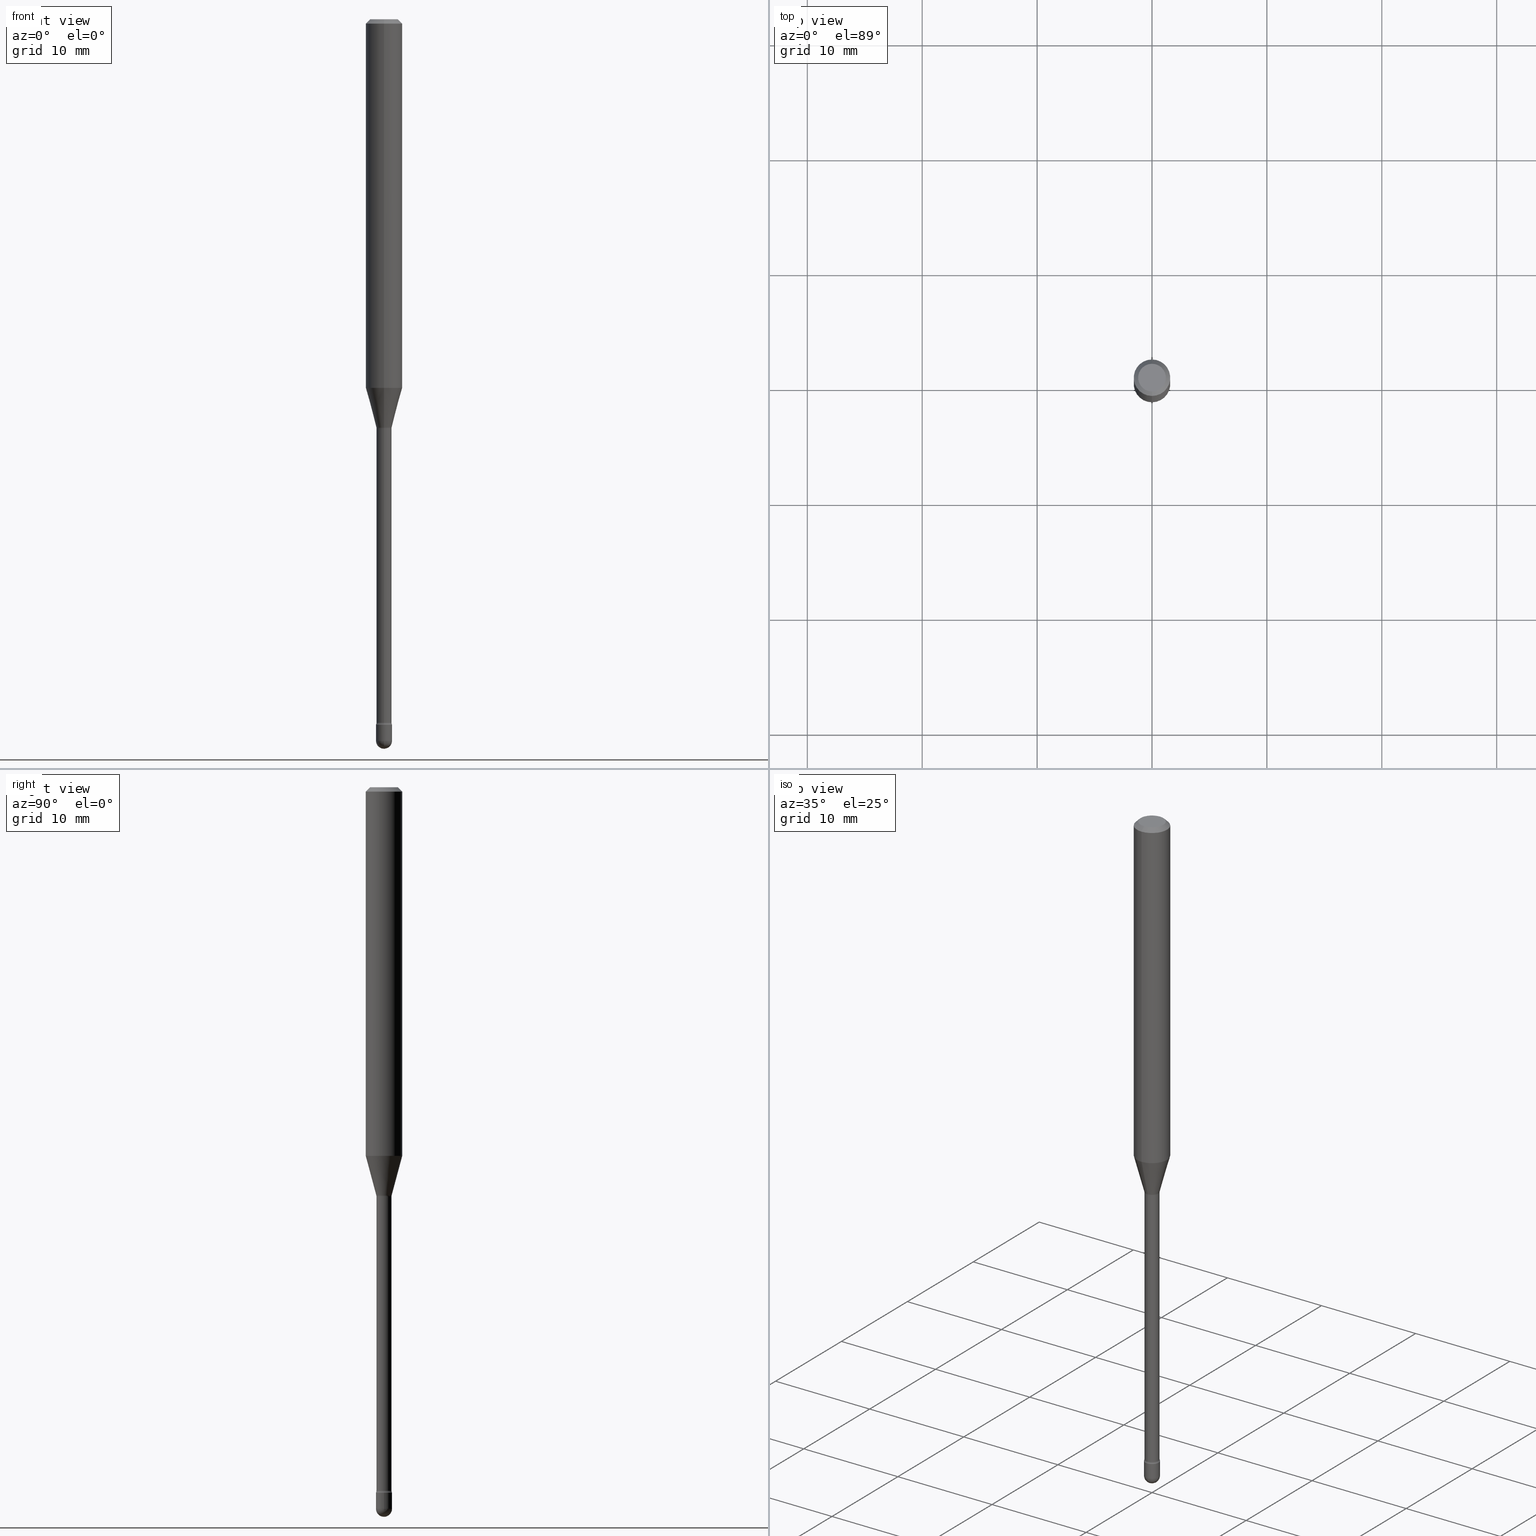
[diagram: canonical four-view strip — front | top / right | iso, engineering-drawing reading convention]
A machine part, canonical four-view strip (front | top / right | iso — engineering-drawing reading convention). The complete STEP part file that produces these views, byte-faithful:
ISO-10303-21;
HEADER;
FILE_DESCRIPTION (( 'STEP AP203' ),
    '1' );
FILE_NAME ('03951.STEP',
    '2024-04-09T21:23:54',
    ( '' ),
    ( '' ),
    'SwSTEP 2.0',
    'SolidWorks 2023',
    '' );
FILE_SCHEMA (( 'CONFIG_CONTROL_DESIGN' ));
ENDSEC;

DATA;
#1 = DIRECTION ( 'NONE',  ( -6.982962677686265133E-15, -1.000000000000000000, 0.000000000000000000 ) ) ;
#2 = CARTESIAN_POINT ( 'NONE',  ( 3.428417186271223769E-29, -4.895066794347240348E-15, -1.401974787463810879 ) ) ;
#3 = DIRECTION ( 'NONE',  ( -4.851104656540964275E-15, -0.7071067811865500152, -0.7071067811865450192 ) ) ;
#4 = ADVANCED_FACE ( 'NONE', ( #353 ), #357, .F. ) ;
#5 = CC_DESIGN_DATE_AND_TIME_ASSIGNMENT ( #354, #192, ( #152 ) ) ;
#6 = DIRECTION ( 'NONE',  ( -2.445420001078101296E-29, 3.491551230534234238E-15, 1.000000000000000000 ) ) ;
#7 = APPROVAL_PERSON_ORGANIZATION ( #97, #29, #440 ) ;
#8 = CARTESIAN_POINT ( 'NONE',  ( 4.440892098500932831E-16, 0.06249999999999556605, -1.263220337902600798 ) ) ;
#9 = ORIENTED_EDGE ( 'NONE', *, *, #338, .T. ) ;
#10 = CYLINDRICAL_SURFACE ( 'NONE', #275, 0.02585000000000002920 ) ;
#11 = ORIENTED_EDGE ( 'NONE', *, *, #436, .F. ) ;
#12 = EDGE_CURVE ( 'NONE', #287, #410, #245, .T. ) ;
#13 = CARTESIAN_POINT ( 'NONE',  ( 0.02750000000000000014, -8.630941869620256010E-15, -2.417000000000000259 ) ) ;
#14 = ORIENTED_EDGE ( 'NONE', *, *, #206, .T. ) ;
#15 = DIRECTION ( 'NONE',  ( -2.445420001078101296E-29, 3.491551230534233844E-15, 1.000000000000000000 ) ) ;
#16 = DIRECTION ( 'NONE',  ( 1.839019923739596371E-15, 0.2588190451025244032, 0.9659258262890673130 ) ) ;
#17 = VERTEX_POINT ( 'NONE', #303 ) ;
#18 = DIRECTION ( 'NONE',  ( -2.445420001078101296E-29, 3.491551230534234238E-15, 1.000000000000000000 ) ) ;
#19 = AXIS2_PLACEMENT_3D ( 'NONE', #126, #476, #255 ) ;
#20 = CIRCLE ( 'NONE', #39, 0.01500000000000002720 ) ;
#21 = ORIENTED_EDGE ( 'NONE', *, *, #436, .T. ) ;
#22 = EDGE_CURVE ( 'NONE', #201, #25, #115, .T. ) ;
#23 = APPLICATION_PROTOCOL_DEFINITION ( 'international standard', 'config_control_design', 1994, #339 ) ;
#24 = DIRECTION ( 'NONE',  ( 1.000000000000000000, -6.982962677686265922E-15, 4.876176775795935793E-29 ) ) ;
#25 = VERTEX_POINT ( 'NONE', #56 ) ;
#26 = ORIENTED_EDGE ( 'NONE', *, *, #536, .T. ) ;
#27 = CARTESIAN_POINT ( 'NONE',  ( 1.953992523340868892E-16, 0.02749999999999159367, -2.417000000000000259 ) ) ;
#28 = DIRECTION ( 'NONE',  ( -6.982962677686265922E-15, -1.000000000000000000, 4.370956789862821150E-15 ) ) ;
#29 = APPROVAL ( #62, 'UNSPECIFIED' ) ;
#30 = VERTEX_POINT ( 'NONE', #345 ) ;
#31 = APPLICATION_PROTOCOL_DEFINITION ( 'international standard', 'config_control_design', 1994, #168 ) ;
#32 = AXIS2_PLACEMENT_3D ( 'NONE', #427, #471, #82 ) ;
#33 = CIRCLE ( 'NONE', #253, 0.04749999999999999362 ) ;
#34 = DIRECTION ( 'NONE',  ( -2.445420001078101296E-29, 3.491551230534234238E-15, 1.000000000000000000 ) ) ;
#35 = EDGE_CURVE ( 'NONE', #452, #30, #79, .T. ) ;
#36 = CC_DESIGN_PERSON_AND_ORGANIZATION_ASSIGNMENT ( #421, #77, ( #92 ) ) ;
#37 = PERSON_AND_ORGANIZATION_ROLE ( 'design_supplier' ) ;
#38 = DIRECTION ( 'NONE',  ( -2.445468806185136597E-29, 3.491481338843145583E-15, 1.000000000000000000 ) ) ;
#39 = AXIS2_PLACEMENT_3D ( 'NONE', #107, #524, #316 ) ;
#40 = EDGE_CURVE ( 'NONE', #155, #201, #302, .T. ) ;
#41 = CARTESIAN_POINT ( 'NONE',  ( 5.910698104549475684E-29, -8.438910395983882728E-15, -2.417000000000000259 ) ) ;
#42 = DIRECTION ( 'NONE',  ( -6.982962677686265922E-15, -1.000000000000000000, 3.491551230534234238E-15 ) ) ;
#43 = CARTESIAN_POINT ( 'NONE',  ( 5.893972545952798109E-29, -8.415030731040159309E-15, -2.410160592130893509 ) ) ;
#44 = DATE_AND_TIME ( #502, #276 ) ;
#45 = CALENDAR_DATE ( 2024, 9, 4 ) ;
#46 = CIRCLE ( 'NONE', #483, 0.02750000000000000014 ) ;
#47 = CARTESIAN_POINT ( 'NONE',  ( 6.046421623292748621E-29, -8.632687610289675147E-15, -2.472499999999999254 ) ) ;
#48 = CARTESIAN_POINT ( 'NONE',  ( 6.114847869110463221E-29, -8.727019457759036735E-15, -2.500000000000000000 ) ) ;
#49 = ADVANCED_FACE ( 'NONE', ( #565 ), #412, .T. ) ;
#50 = MANIFOLD_SOLID_BREP ( 'Body-Move/Copy2[1]', #329 ) ;
#51 = DIMENSIONAL_EXPONENTS ( 1.000000000000000000, 0.000000000000000000, 0.000000000000000000, 0.000000000000000000, 0.000000000000000000, 0.000000000000000000, 0.000000000000000000 ) ;
#52 = ORIENTED_EDGE ( 'NONE', *, *, #415, .F. ) ;
#53 = CARTESIAN_POINT ( 'NONE',  ( -1.953992523339673522E-16, -0.02750000000000868070, -2.472499999999999254 ) ) ;
#54 = CARTESIAN_POINT ( 'NONE',  ( 0.000000000000000000, 0.000000000000000000, 0.000000000000000000 ) ) ;
#55 = LINE ( 'NONE', #274, #414 ) ;
#56 = CARTESIAN_POINT ( 'NONE',  ( 4.440892098500935790E-16, 0.06249999999999993755, -0.01500000000000030129 ) ) ;
#57 = AXIS2_PLACEMENT_3D ( 'NONE', #233, #18, #544 ) ;
#58 = FACE_OUTER_BOUND ( 'NONE', #456, .T. ) ;
#59 = APPROVAL_PERSON_ORGANIZATION ( #194, #392, #162 ) ;
#60 = DIRECTION ( 'NONE',  ( 4.937700262164548042E-15, 0.7071067811865451302, -0.7071067811865499042 ) ) ;
#61 = DIRECTION ( 'NONE',  ( 1.000000000000000000, -6.982962677686266711E-15, 4.876176775795935793E-29 ) ) ;
#62 = APPROVAL_STATUS ( 'not_yet_approved' ) ;
#63 = EDGE_LOOP ( 'NONE', ( #290, #324, #496, #14 ) ) ;
#64 = DIRECTION ( 'NONE',  ( -6.982962677686265133E-15, -1.000000000000000000, 0.000000000000000000 ) ) ;
#65 = CARTESIAN_POINT ( 'NONE',  ( -1.840786654676023495E-16, -0.02636111260566886480, -1.398092501787272957 ) ) ;
#66 = EDGE_LOOP ( 'NONE', ( #11, #318, #417, #460 ) ) ;
#67 = CIRCLE ( 'NONE', #139, 0.02750000000000000014 ) ;
#68 = EDGE_LOOP ( 'NONE', ( #293, #156, #161, #488 ) ) ;
#69 = TOROIDAL_SURFACE ( 'NONE', #310, 0.04085000000000012232, 0.01500000000000006710 ) ;
#70 = CC_DESIGN_PERSON_AND_ORGANIZATION_ASSIGNMENT ( #326, #335, ( #268 ) ) ;
#71 = FACE_OUTER_BOUND ( 'NONE', #236, .T. ) ;
#72 = ORIENTED_EDGE ( 'NONE', *, *, #113, .F. ) ;
#73 = DIRECTION ( 'NONE',  ( -2.445420001078101296E-29, 3.491551230534233844E-15, 1.000000000000000000 ) ) ;
#74 = ORIENTED_EDGE ( 'NONE', *, *, #323, .F. ) ;
#75 = CARTESIAN_POINT ( 'NONE',  ( 3.668130001617172351E-31, -5.237326845801380200E-17, -0.01500000000000008271 ) ) ;
#76 = EDGE_LOOP ( 'NONE', ( #550, #291, #333, #9, #376 ) ) ;
#77 = PERSON_AND_ORGANIZATION_ROLE ( 'design_owner' ) ;
#78 = EDGE_CURVE ( 'NONE', #117, #193, #340, .T. ) ;
#79 = CIRCLE ( 'NONE', #431, 0.02584999999999999451 ) ;
#80 = VECTOR ( 'NONE', #73, 39.37007874015748143 ) ;
#81 = APPROVAL_STATUS ( 'not_yet_approved' ) ;
#82 = DIRECTION ( 'NONE',  ( -6.982962677686265922E-15, -1.000000000000000000, 3.491551230534234238E-15 ) ) ;
#83 = FACE_OUTER_BOUND ( 'NONE', #66, .T. ) ;
#84 = EDGE_CURVE ( 'NONE', #117, #30, #172, .T. ) ;
#85 = CIRCLE ( 'NONE', #507, 0.01500000000000006189 ) ;
#86 = EDGE_CURVE ( 'NONE', #552, #17, #46, .T. ) ;
#87 = DIRECTION ( 'NONE',  ( -2.445468806185136597E-29, 3.491481338843145583E-15, 1.000000000000000000 ) ) ;
#88 = FACE_OUTER_BOUND ( 'NONE', #68, .T. ) ;
#89 = LINE ( 'NONE', #262, #185 ) ;
#90 = ADVANCED_FACE ( 'NONE', ( #356 ), #314, .T. ) ;
#91 = DIRECTION ( 'NONE',  ( -2.445420001078101296E-29, 3.491551230534234238E-15, 1.000000000000000000 ) ) ;
#92 = PRODUCT ( '03951', '03951', '', ( #370 ) ) ;
#93 = AXIS2_PLACEMENT_3D ( 'NONE', #393, #6, #525 ) ;
#94 = CIRCLE ( 'NONE', #247, 0.02750000000000009034 ) ;
#95 = DIRECTION ( 'NONE',  ( -2.445468806185136597E-29, 3.491481338843145583E-15, 1.000000000000000000 ) ) ;
#96 = FACE_OUTER_BOUND ( 'NONE', #327, .T. ) ;
#97 = PERSON_AND_ORGANIZATION ( #355, #520 ) ;
#98 = ORIENTED_EDGE ( 'NONE', *, *, #261, .T. ) ;
#99 = CARTESIAN_POINT ( 'NONE',  ( -1.840786654676023495E-16, -0.02636111260566886480, -1.398092501787272957 ) ) ;
#100 = CARTESIAN_POINT ( 'NONE',  ( 5.893854917807127540E-29, -8.415199181239739189E-15, -2.410160592130893509 ) ) ;
#101 = SECURITY_CLASSIFICATION_LEVEL ( 'unclassified' ) ;
#102 = DIRECTION ( 'NONE',  ( 6.982962677686265922E-15, 1.000000000000000000, 0.000000000000000000 ) ) ;
#103 = VERTEX_POINT ( 'NONE', #108 ) ;
#104 = CIRCLE ( 'NONE', #423, 0.02750000000000000014 ) ;
#105 = EDGE_CURVE ( 'NONE', #193, #117, #446, .T. ) ;
#106 = AXIS2_PLACEMENT_3D ( 'NONE', #41, #359, #144 ) ;
#107 = CARTESIAN_POINT ( 'NONE',  ( 2.902567075580351245E-16, 0.04084999999999510550, -1.401974787463811101 ) ) ;
#108 = CARTESIAN_POINT ( 'NONE',  ( -3.773273898774340269E-16, -0.04749999999999999362, 8.310497123415743140E-17 ) ) ;
#109 = PRODUCT_DEFINITION_SHAPE ( 'NONE', 'NONE',  #268 ) ;
#110 = CARTESIAN_POINT ( 'NONE',  ( 1.895372747640661167E-16, 0.02584999999999164702, -2.410160592130893509 ) ) ;
#111 = ORIENTED_EDGE ( 'NONE', *, *, #78, .T. ) ;
#112 = ORIENTED_EDGE ( 'NONE', *, *, #84, .F. ) ;
#113 = EDGE_CURVE ( 'NONE', #117, #155, #455, .T. ) ;
#114 = ORIENTED_EDGE ( 'NONE', *, *, #468, .T. ) ;
#115 = CIRCLE ( 'NONE', #398, 0.06250000000000000000 ) ;
#116 = AXIS2_PLACEMENT_3D ( 'NONE', #75, #251, #336 ) ;
#117 = VERTEX_POINT ( 'NONE', #99 ) ;
#118 = PERSON_AND_ORGANIZATION_ROLE ( 'creator' ) ;
#119 = CARTESIAN_POINT ( 'NONE',  ( 5.910698104549475684E-29, -8.438910395983882728E-15, -2.417000000000000259 ) ) ;
#120 = PLANE ( 'NONE',  #424 ) ;
#121 = AXIS2_PLACEMENT_3D ( 'NONE', #292, #467, #385 ) ;
#122 = AXIS2_PLACEMENT_3D ( 'NONE', #100, #399, #64 ) ;
#123 = CC_DESIGN_SECURITY_CLASSIFICATION ( #152, ( #470 ) ) ;
#124 = CARTESIAN_POINT ( 'NONE',  ( 1.920314736364314350E-16, 0.02749999999999156244, -2.417000000000000259 ) ) ;
#125 = FACE_OUTER_BOUND ( 'NONE', #368, .T. ) ;
#126 = CARTESIAN_POINT ( 'NONE',  ( -1.169113584055446105E-44, 1.669184350826100908E-30, 4.780733988912460139E-16 ) ) ;
#127 = CALENDAR_DATE ( 2024, 9, 4 ) ;
#128 = CARTESIAN_POINT ( 'NONE',  ( 3.418923367227918324E-29, -4.881511595016037961E-15, -1.398092501787272957 ) ) ;
#129 = LOCAL_TIME ( 17, 23, 54.00000000000000000, #166 ) ;
#130 = DIRECTION ( 'NONE',  ( -6.982962677686266711E-15, -1.000000000000000000, 0.000000000000000000 ) ) ;
#131 = CYLINDRICAL_SURFACE ( 'NONE', #19, 0.06250000000000000000 ) ;
#132 = ADVANCED_FACE ( 'NONE', ( #277 ), #469, .F. ) ;
#133 = COORDINATED_UNIVERSAL_TIME_OFFSET ( 5, 0, .BEHIND. ) ;
#134 = DIRECTION ( 'NONE',  ( -6.982962677686265922E-15, -1.000000000000000000, 0.000000000000000000 ) ) ;
#135 = DESIGN_CONTEXT ( 'detailed design', #168, 'design' ) ;
#136 = DIRECTION ( 'NONE',  ( 6.982962677686265922E-15, 1.000000000000000000, -3.483106191921935554E-15 ) ) ;
#137 = CARTESIAN_POINT ( 'NONE',  ( 6.046421623292748621E-29, -8.632687610289675147E-15, -2.472499999999999254 ) ) ;
#138 = LINE ( 'NONE', #180, #541 ) ;
#139 = AXIS2_PLACEMENT_3D ( 'NONE', #177, #264, #438 ) ;
#140 = CIRCLE ( 'NONE', #288, 0.04749999999999999362 ) ;
#141 = VERTEX_POINT ( 'NONE', #13 ) ;
#142 = CYLINDRICAL_SURFACE ( 'NONE', #215, 0.02750000000000000014 ) ;
#143 = CARTESIAN_POINT ( 'NONE',  ( -1.169113584055446105E-44, 1.669184350826100908E-30, 4.780733988912460139E-16 ) ) ;
#144 = DIRECTION ( 'NONE',  ( 1.000000000000000000, -6.982962677686279332E-15, 0.000000000000000000 ) ) ;
#145 = EDGE_LOOP ( 'NONE', ( #532, #207, #394, #402 ) ) ;
#146 = PRODUCT_RELATED_PRODUCT_CATEGORY ( 'detail', '', ( #92 ) ) ;
#147 = CARTESIAN_POINT ( 'NONE',  ( 6.046421623292749742E-29, -8.632687610289676724E-15, -2.472500000000000142 ) ) ;
#148 = CARTESIAN_POINT ( 'NONE',  ( 3.668130001617172351E-31, -5.237326845801380200E-17, -0.01500000000000008271 ) ) ;
#149 = ORIENTED_EDGE ( 'NONE', *, *, #187, .F. ) ;
#150 = DIRECTION ( 'NONE',  ( 1.000000000000000000, 0.000000000000000000, 0.000000000000000000 ) ) ;
#151 = DIRECTION ( 'NONE',  ( -2.445420001078101296E-29, 3.491551230534234238E-15, 1.000000000000000000 ) ) ;
#152 = SECURITY_CLASSIFICATION ( '', '', #101 ) ;
#153 = ORIENTED_EDGE ( 'NONE', *, *, #86, .F. ) ;
#154 = LOCAL_TIME ( 17, 23, 54.00000000000000000, #530 ) ;
#155 = VERTEX_POINT ( 'NONE', #242 ) ;
#156 = ORIENTED_EDGE ( 'NONE', *, *, #457, .T. ) ;
#157 = DIRECTION ( 'NONE',  ( -2.445468806185136597E-29, 3.491481338843145583E-15, 1.000000000000000000 ) ) ;
#158 = ADVANCED_FACE ( 'NONE', ( #58 ), #408, .T. ) ;
#159 = ORIENTED_EDGE ( 'NONE', *, *, #22, .F. ) ;
#160 = ADVANCED_BREP_SHAPE_REPRESENTATION ( '03951', ( #50, #420, #231 ), #367 ) ;
#161 = ORIENTED_EDGE ( 'NONE', *, *, #22, .T. ) ;
#162 = APPROVAL_ROLE ( '' ) ;
#163 = ORIENTED_EDGE ( 'NONE', *, *, #548, .T. ) ;
#164 = CALENDAR_DATE ( 2024, 9, 4 ) ;
#165 = VERTEX_POINT ( 'NONE', #53 ) ;
#166 = COORDINATED_UNIVERSAL_TIME_OFFSET ( 5, 0, .BEHIND. ) ;
#167 = ADVANCED_FACE ( 'NONE', ( #312 ), #10, .T. ) ;
#168 = APPLICATION_CONTEXT ( 'configuration controlled 3d designs of mechanical parts and assemblies' ) ;
#169 = DATE_AND_TIME ( #164, #566 ) ;
#170 = DIRECTION ( 'NONE',  ( -2.445420001078101296E-29, 3.491551230534233844E-15, 1.000000000000000000 ) ) ;
#171 = DIRECTION ( 'NONE',  ( -6.982962677686267499E-15, -1.000000000000000000, 0.000000000000000000 ) ) ;
#172 = CIRCLE ( 'NONE', #256, 0.01500000000000002720 ) ;
#173 = VECTOR ( 'NONE', #16, 39.37007874015748143 ) ;
#174 = EDGE_CURVE ( 'NONE', #453, #165, #377, .T. ) ;
#175 = CARTESIAN_POINT ( 'NONE',  ( 5.910580142605772415E-29, -8.439079324201244394E-15, -2.417000000000000259 ) ) ;
#176 = EDGE_CURVE ( 'NONE', #508, #155, #564, .T. ) ;
#177 = CARTESIAN_POINT ( 'NONE',  ( 5.910580142605772415E-29, -8.439079324201244394E-15, -2.417000000000000259 ) ) ;
#178 = CARTESIAN_POINT ( 'NONE',  ( 3.668130001617172351E-31, -5.237326845801380200E-17, -0.01500000000000008271 ) ) ;
#179 = SHAPE_DEFINITION_REPRESENTATION ( #109, #160 ) ;
#180 = CARTESIAN_POINT ( 'NONE',  ( 0.02750000000000000014, -1.920314736363723444E-16, 1.340948613343882413E-30 ) ) ;
#181 = ADVANCED_FACE ( 'NONE', ( #512 ), #209, .F. ) ;
#182 = DIRECTION ( 'NONE',  ( 1.000000000000000000, -6.982962677686279332E-15, 0.000000000000000000 ) ) ;
#183 = PERSON_AND_ORGANIZATION_ROLE ( 'classification_officer' ) ;
#184 = CIRCLE ( 'NONE', #121, 0.02584999999999999451 ) ;
#185 = VECTOR ( 'NONE', #220, 39.37007874015748143 ) ;
#186 = CARTESIAN_POINT ( 'NONE',  ( 0.02750000000000000014, -8.727830476773152219E-15, -2.472499999999999254 ) ) ;
#187 = EDGE_CURVE ( 'NONE', #141, #401, #104, .T. ) ;
#188 = EDGE_LOOP ( 'NONE', ( #74, #501, #238, #543 ) ) ;
#189 = ORIENTED_EDGE ( 'NONE', *, *, #105, .F. ) ;
#190 = ORIENTED_EDGE ( 'NONE', *, *, #517, .T. ) ;
#191 = DIRECTION ( 'NONE',  ( -1.000000000000000000, 7.105427357601001070E-15, -4.926315508542082329E-29 ) ) ;
#192 = DATE_TIME_ROLE ( 'classification_date' ) ;
#193 = VERTEX_POINT ( 'NONE', #558 ) ;
#194 = PERSON_AND_ORGANIZATION ( #355, #520 ) ;
#195 = CARTESIAN_POINT ( 'NONE',  ( 2.023197963935880220E-45, -2.889373235658218209E-31, -8.274371221621867765E-17 ) ) ;
#196 = CARTESIAN_POINT ( 'NONE',  ( -1.169113584055446105E-44, 1.669184350826100908E-30, 4.780733988912460139E-16 ) ) ;
#197 = CARTESIAN_POINT ( 'NONE',  ( 4.364351673553919652E-16, 0.06249999999999995143, -0.01500000000000030129 ) ) ;
#198 = ORIENTED_EDGE ( 'NONE', *, *, #218, .F. ) ;
#199 = EDGE_CURVE ( 'NONE', #30, #452, #184, .T. ) ;
#200 = DIRECTION ( 'NONE',  ( -2.445420001078101296E-29, 3.491551230534234238E-15, 1.000000000000000000 ) ) ;
#201 = VERTEX_POINT ( 'NONE', #562 ) ;
#202 =( CONVERSION_BASED_UNIT ( 'INCH', #542 ) LENGTH_UNIT ( ) NAMED_UNIT ( #51 ) );
#203 = CARTESIAN_POINT ( 'NONE',  ( 6.046421623292749742E-29, -8.632687610289676724E-15, -2.472500000000000142 ) ) ;
#204 = EDGE_LOOP ( 'NONE', ( #189, #379, #388, #112 ) ) ;
#205 = DATE_AND_TIME ( #208, #129 ) ;
#206 = EDGE_CURVE ( 'NONE', #500, #410, #514, .T. ) ;
#207 = ORIENTED_EDGE ( 'NONE', *, *, #239, .T. ) ;
#208 = CALENDAR_DATE ( 2024, 9, 4 ) ;
#209 = TOROIDAL_SURFACE ( 'NONE', #32, 0.04085000000000012232, 0.01500000000000006710 ) ;
#210 = AXIS2_PLACEMENT_3D ( 'NONE', #375, #278, #547 ) ;
#211 = ADVANCED_FACE ( 'NONE', ( #387 ), #286, .T. ) ;
#212 = LINE ( 'NONE', #380, #300 ) ;
#213 = ORIENTED_EDGE ( 'NONE', *, *, #206, .F. ) ;
#214 = CIRCLE ( 'NONE', #311, 0.02750000000000000014 ) ;
#215 = AXIS2_PLACEMENT_3D ( 'NONE', #280, #407, #61 ) ;
#216 = DIRECTION ( 'NONE',  ( 1.000000000000000000, -6.982962677686279332E-15, 0.000000000000000000 ) ) ;
#217 = CARTESIAN_POINT ( 'NONE',  ( -2.852540253834496229E-16, -0.04085000000000488934, -1.401974787463810657 ) ) ;
#218 = EDGE_CURVE ( 'NONE', #155, #508, #494, .T. ) ;
#219 = CARTESIAN_POINT ( 'NONE',  ( 2.902567075580607131E-16, 0.04084999999999170545, -2.410160592130893509 ) ) ;
#220 = DIRECTION ( 'NONE',  ( -2.445468806185136877E-29, 3.491481338843145188E-15, 1.000000000000000000 ) ) ;
#221 = AXIS2_PLACEMENT_3D ( 'NONE', #301, #342, #473 ) ;
#222 = CC_DESIGN_PERSON_AND_ORGANIZATION_ASSIGNMENT ( #337, #37, ( #470 ) ) ;
#223 = LOCAL_TIME ( 17, 23, 54.00000000000000000, #133 ) ;
#224 = DIRECTION ( 'NONE',  ( -6.982962677686265922E-15, -1.000000000000000000, 3.483106191921935554E-15 ) ) ;
#225 = DIRECTION ( 'NONE',  ( -6.982962677686263555E-15, -1.000000000000000000, 0.000000000000000000 ) ) ;
#226 = ADVANCED_FACE ( 'NONE', ( #83 ), #131, .T. ) ;
#227 = DIRECTION ( 'NONE',  ( 1.000000000000000000, -6.982962677686279332E-15, 0.000000000000000000 ) ) ;
#228 = ORIENTED_EDGE ( 'NONE', *, *, #372, .T. ) ;
#229 = CC_DESIGN_PERSON_AND_ORGANIZATION_ASSIGNMENT ( #254, #118, ( #470 ) ) ;
#230 = DIRECTION ( 'NONE',  ( -1.000000000000000000, 6.982962677686265922E-15, -4.883557194083112901E-29 ) ) ;
#231 = AXIS2_PLACEMENT_3D ( 'NONE', #459, #241, #150 ) ;
#232 = DIRECTION ( 'NONE',  ( -2.445420001078101296E-29, 3.491551230534234238E-15, 1.000000000000000000 ) ) ;
#233 = CARTESIAN_POINT ( 'NONE',  ( -1.169113584055446105E-44, 1.669184350826100908E-30, 4.780733988912460139E-16 ) ) ;
#234 = CARTESIAN_POINT ( 'NONE',  ( -1.805095852181314535E-16, -0.02585000000000847384, -2.410160592130893509 ) ) ;
#235 = ORIENTED_EDGE ( 'NONE', *, *, #40, .F. ) ;
#236 = EDGE_LOOP ( 'NONE', ( #403, #419 ) ) ;
#237 = DIRECTION ( 'NONE',  ( -6.982962677686265922E-15, -1.000000000000000000, 0.000000000000000000 ) ) ;
#238 = ORIENTED_EDGE ( 'NONE', *, *, #113, .T. ) ;
#239 = EDGE_CURVE ( 'NONE', #287, #519, #265, .T. ) ;
#240 = CARTESIAN_POINT ( 'NONE',  ( 6.046421623292749742E-29, -8.632687610289676724E-15, -2.472500000000000142 ) ) ;
#241 = DIRECTION ( 'NONE',  ( 0.000000000000000000, 0.000000000000000000, 1.000000000000000000 ) ) ;
#242 = CARTESIAN_POINT ( 'NONE',  ( -4.364351673553609038E-16, -0.06250000000000442701, -1.263220337902600354 ) ) ;
#243 = ORIENTED_EDGE ( 'NONE', *, *, #372, .F. ) ;
#244 = DIRECTION ( 'NONE',  ( -2.445420001078101296E-29, 3.491551230534234238E-15, 1.000000000000000000 ) ) ;
#245 = CIRCLE ( 'NONE', #475, 0.01500000000000006189 ) ;
#246 = CLOSED_SHELL ( 'NONE', ( #132, #158, #529, #429, #90, #211, #556, #226, #49, #361, #444, #181, #167, #4 ) ) ;
#247 = AXIS2_PLACEMENT_3D ( 'NONE', #486, #191, #397 ) ;
#248 = ORIENTED_EDGE ( 'NONE', *, *, #485, .T. ) ;
#249 = DIRECTION ( 'NONE',  ( 6.982962677686265922E-15, 1.000000000000000000, 0.000000000000000000 ) ) ;
#250 = ORIENTED_EDGE ( 'NONE', *, *, #86, .T. ) ;
#251 = DIRECTION ( 'NONE',  ( 2.445420001078101296E-29, -3.491551230534234238E-15, -1.000000000000000000 ) ) ;
#252 = EDGE_CURVE ( 'NONE', #410, #500, #67, .T. ) ;
#253 = AXIS2_PLACEMENT_3D ( 'NONE', #195, #451, #363 ) ;
#254 = PERSON_AND_ORGANIZATION ( #355, #520 ) ;
#255 = DIRECTION ( 'NONE',  ( -6.982962677686265922E-15, -1.000000000000000000, 3.491551230534235027E-15 ) ) ;
#256 = AXIS2_PLACEMENT_3D ( 'NONE', #217, #306, #225 ) ;
#257 = DIRECTION ( 'NONE',  ( 1.000000000000000000, -6.982962677686266711E-15, 4.876176775795935793E-29 ) ) ;
#258 = DIRECTION ( 'NONE',  ( -2.445420001078101296E-29, 3.491551230534234238E-15, 1.000000000000000000 ) ) ;
#259 = LINE ( 'NONE', #434, #266 ) ;
#260 = CARTESIAN_POINT ( 'NONE',  ( -4.364351673553916201E-16, -0.06250000000000000000, 6.962953507996357031E-16 ) ) ;
#261 = EDGE_CURVE ( 'NONE', #17, #453, #214, .T. ) ;
#262 = CARTESIAN_POINT ( 'NONE',  ( -0.02750000000000000014, 1.953992523340275521E-16, -1.352707149820099181E-30 ) ) ;
#263 = DIRECTION ( 'NONE',  ( -2.445420001078101296E-29, 3.491551230534234238E-15, 1.000000000000000000 ) ) ;
#264 = DIRECTION ( 'NONE',  ( -2.445420001078101296E-29, 3.491551230534234238E-15, 1.000000000000000000 ) ) ;
#265 = CIRCLE ( 'NONE', #307, 0.02585000000000006043 ) ;
#266 = VECTOR ( 'NONE', #3, 39.37007874015748143 ) ;
#267 = CYLINDRICAL_SURFACE ( 'NONE', #358, 0.02750000000000000014 ) ;
#268 = PRODUCT_DEFINITION ( 'UNKNOWN', '', #470, #135 ) ;
#269 = ORIENTED_EDGE ( 'NONE', *, *, #381, .T. ) ;
#270 = DIRECTION ( 'NONE',  ( -6.982962677686265922E-15, -1.000000000000000000, 3.491551230534236210E-15 ) ) ;
#271 = CARTESIAN_POINT ( 'NONE',  ( 3.418923367227918324E-29, -4.881511595016037961E-15, -1.398092501787272957 ) ) ;
#272 = FACE_OUTER_BOUND ( 'NONE', #505, .T. ) ;
#273 = ORIENTED_EDGE ( 'NONE', *, *, #84, .T. ) ;
#274 = CARTESIAN_POINT ( 'NONE',  ( -1.805095852181901743E-16, -0.02585000000000002920, 5.683299982005562177E-16 ) ) ;
#275 = AXIS2_PLACEMENT_3D ( 'NONE', #143, #200, #270 ) ;
#276 = LOCAL_TIME ( 17, 23, 54.00000000000000000, #509 ) ;
#277 = FACE_OUTER_BOUND ( 'NONE', #204, .T. ) ;
#278 = DIRECTION ( 'NONE',  ( 2.445420001078101296E-29, -3.491551230534233844E-15, -1.000000000000000000 ) ) ;
#279 = EDGE_CURVE ( 'NONE', #165, #552, #347, .T. ) ;
#280 = CARTESIAN_POINT ( 'NONE',  ( 0.000000000000000000, 0.000000000000000000, 0.000000000000000000 ) ) ;
#281 = APPROVAL_DATE_TIME ( #205, #392 ) ;
#282 = EDGE_LOOP ( 'NONE', ( #111, #373, #198, #72 ) ) ;
#283 = ORIENTED_EDGE ( 'NONE', *, *, #477, .T. ) ;
#284 = ORIENTED_EDGE ( 'NONE', *, *, #261, .F. ) ;
#285 = ADVANCED_FACE ( 'NONE', ( #272 ), #531, .T. ) ;
#286 = CONICAL_SURFACE ( 'NONE', #382, 0.02636111260566398329, 0.2617993877991496854 ) ;
#287 = VERTEX_POINT ( 'NONE', #110 ) ;
#288 = AXIS2_PLACEMENT_3D ( 'NONE', #474, #518, #478 ) ;
#289 = DIRECTION ( 'NONE',  ( 1.000000000000000000, -6.982962677686265922E-15, 4.883557194083112340E-29 ) ) ;
#290 = ORIENTED_EDGE ( 'NONE', *, *, #12, .F. ) ;
#291 = ORIENTED_EDGE ( 'NONE', *, *, #174, .T. ) ;
#292 = CARTESIAN_POINT ( 'NONE',  ( 3.428417186271223769E-29, -4.895066794347240348E-15, -1.401974787463810879 ) ) ;
#293 = ORIENTED_EDGE ( 'NONE', *, *, #536, .F. ) ;
#294 = AXIS2_PLACEMENT_3D ( 'NONE', #196, #34, #538 ) ;
#295 = AXIS2_PLACEMENT_3D ( 'NONE', #240, #230, #406 ) ;
#296 = EDGE_CURVE ( 'NONE', #193, #452, #20, .T. ) ;
#297 = DIRECTION ( 'NONE',  ( -2.445468806185136597E-29, 3.491481338843145583E-15, 1.000000000000000000 ) ) ;
#298 = DIRECTION ( 'NONE',  ( -6.982962677686265922E-15, -1.000000000000000000, 3.491551230534233844E-15 ) ) ;
#299 = DIRECTION ( 'NONE',  ( -6.982962677686266711E-15, -1.000000000000000000, 0.000000000000000000 ) ) ;
#300 = VECTOR ( 'NONE', #422, 39.37007874015748143 ) ;
#301 = CARTESIAN_POINT ( 'NONE',  ( 3.089104280075657330E-29, -4.410598525239695969E-15, -1.263220337902600576 ) ) ;
#302 = LINE ( 'NONE', #260, #540 ) ;
#303 = CARTESIAN_POINT ( 'NONE',  ( 1.920314736364331113E-16, 0.02749999999999141673, -2.472499999999999254 ) ) ;
#304 = DIRECTION ( 'NONE',  ( -2.445420001078101296E-29, 3.491551230534234238E-15, 1.000000000000000000 ) ) ;
#305 = CARTESIAN_POINT ( 'NONE',  ( 3.418923367227918324E-29, -4.881511595016037961E-15, -1.398092501787272957 ) ) ;
#306 = DIRECTION ( 'NONE',  ( -1.000000000000000000, 6.982962677686265922E-15, -4.883557194083112340E-29 ) ) ;
#307 = AXIS2_PLACEMENT_3D ( 'NONE', #479, #263, #1 ) ;
#308 = ADVANCED_FACE ( 'NONE', ( #448 ), #142, .T. ) ;
#309 = FACE_OUTER_BOUND ( 'NONE', #325, .T. ) ;
#310 = AXIS2_PLACEMENT_3D ( 'NONE', #43, #258, #42 ) ;
#311 = AXIS2_PLACEMENT_3D ( 'NONE', #47, #87, #563 ) ;
#312 = FACE_OUTER_BOUND ( 'NONE', #145, .T. ) ;
#313 = FACE_OUTER_BOUND ( 'NONE', #188, .T. ) ;
#314 = CYLINDRICAL_SURFACE ( 'NONE', #294, 0.06250000000000000000 ) ;
#315 = SPHERICAL_SURFACE ( 'NONE', #295, 0.02750000000000009034 ) ;
#316 = DIRECTION ( 'NONE',  ( 7.105427357600997914E-15, 1.000000000000000000, 0.000000000000000000 ) ) ;
#317 = ORIENTED_EDGE ( 'NONE', *, *, #381, .F. ) ;
#318 = ORIENTED_EDGE ( 'NONE', *, *, #176, .T. ) ;
#319 = AXIS2_PLACEMENT_3D ( 'NONE', #178, #350, #136 ) ;
#320 = AXIS2_PLACEMENT_3D ( 'NONE', #147, #491, #102 ) ;
#321 = ORIENTED_EDGE ( 'NONE', *, *, #174, .F. ) ;
#322 = ORIENTED_EDGE ( 'NONE', *, *, #457, .F. ) ;
#323 = EDGE_CURVE ( 'NONE', #193, #508, #454, .T. ) ;
#324 = ORIENTED_EDGE ( 'NONE', *, *, #485, .F. ) ;
#325 = EDGE_LOOP ( 'NONE', ( #545, #269, #153, #513 ) ) ;
#326 = PERSON_AND_ORGANIZATION ( #355, #520 ) ;
#327 = EDGE_LOOP ( 'NONE', ( #98, #163, #149, #499, #250 ) ) ;
#328 = APPROVAL ( #81, 'UNSPECIFIED' ) ;
#329 = CLOSED_SHELL ( 'NONE', ( #344, #285, #378, #497, #308 ) ) ;
#330 = ORIENTED_EDGE ( 'NONE', *, *, #239, .F. ) ;
#331 = AXIS2_PLACEMENT_3D ( 'NONE', #271, #442, #237 ) ;
#332 = PLANE ( 'NONE',  #210 ) ;
#333 = ORIENTED_EDGE ( 'NONE', *, *, #279, .T. ) ;
#334 =( NAMED_UNIT ( * ) SI_UNIT ( $, .STERADIAN. ) SOLID_ANGLE_UNIT ( ) );
#335 = PERSON_AND_ORGANIZATION_ROLE ( 'creator' ) ;
#336 = DIRECTION ( 'NONE',  ( 6.982962677686265922E-15, 1.000000000000000000, -3.483106191921935554E-15 ) ) ;
#337 = PERSON_AND_ORGANIZATION ( #355, #520 ) ;
#338 = EDGE_CURVE ( 'NONE', #552, #141, #138, .T. ) ;
#339 = APPLICATION_CONTEXT ( 'configuration controlled 3d designs of mechanical parts and assemblies' ) ;
#340 = CIRCLE ( 'NONE', #506, 0.02636111260566398329 ) ;
#341 = CIRCLE ( 'NONE', #106, 0.02750000000000000014 ) ;
#342 = DIRECTION ( 'NONE',  ( -2.445420001078101296E-29, 3.491551230534234238E-15, 1.000000000000000000 ) ) ;
#343 = DIRECTION ( 'NONE',  ( -2.445420001078101296E-29, 3.491551230534234238E-15, 1.000000000000000000 ) ) ;
#344 = ADVANCED_FACE ( 'NONE', ( #96 ), #267, .T. ) ;
#345 = CARTESIAN_POINT ( 'NONE',  ( -1.805095852181556863E-16, -0.02585000000000488990, -1.401974787463810879 ) ) ;
#346 = AXIS2_PLACEMENT_3D ( 'NONE', #489, #151, #445 ) ;
#347 = CIRCLE ( 'NONE', #437, 0.02750000000000000014 ) ;
#348 = CARTESIAN_POINT ( 'NONE',  ( -0.02750000000000000014, -8.340399750802750818E-15, -2.472499999999999254 ) ) ;
#349 = UNCERTAINTY_MEASURE_WITH_UNIT (LENGTH_MEASURE( 1.000000000000000082E-05 ), #202, 'distance_accuracy_value', 'NONE');
#350 = DIRECTION ( 'NONE',  ( 2.445420001078101296E-29, -3.491551230534234238E-15, -1.000000000000000000 ) ) ;
#351 = EDGE_CURVE ( 'NONE', #401, #141, #341, .T. ) ;
#352 = DIRECTION ( 'NONE',  ( -2.445468806185136877E-29, 3.491481338843145188E-15, 1.000000000000000000 ) ) ;
#353 = FACE_OUTER_BOUND ( 'NONE', #374, .T. ) ;
#354 = DATE_AND_TIME ( #127, #223 ) ;
#355 = PERSON ( 'UNSPECIFIED', 'UNSPECIFIED', 'UNSPECIFIED', ('UNSPECIFIED'), ('UNSPECIFIED'), ('UNSPECIFIED') ) ;
#356 = FACE_OUTER_BOUND ( 'NONE', #464, .T. ) ;
#357 = TOROIDAL_SURFACE ( 'NONE', #93, 0.04084999999999999742, 0.01500000000000002373 ) ;
#358 = AXIS2_PLACEMENT_3D ( 'NONE', #54, #396, #257 ) ;
#359 = DIRECTION ( 'NONE',  ( -2.445468806185136597E-29, 3.491481338843145583E-15, 1.000000000000000000 ) ) ;
#360 = EDGE_LOOP ( 'NONE', ( #322, #243, #190, #283 ) ) ;
#361 = ADVANCED_FACE ( 'NONE', ( #534 ), #332, .F. ) ;
#362 = ORIENTED_EDGE ( 'NONE', *, *, #296, .F. ) ;
#363 = DIRECTION ( 'NONE',  ( -6.982962677686266711E-15, -1.000000000000000000, 3.491551230534234238E-15 ) ) ;
#364 = ORIENTED_EDGE ( 'NONE', *, *, #511, .F. ) ;
#365 = AXIS2_PLACEMENT_3D ( 'NONE', #527, #441, #28 ) ;
#366 = CARTESIAN_POINT ( 'NONE',  ( 1.836752971939860809E-16, 0.02585000000000002920, 3.878167995819360074E-16 ) ) ;
#367 =( GEOMETRIC_REPRESENTATION_CONTEXT ( 3 ) GLOBAL_UNCERTAINTY_ASSIGNED_CONTEXT ( ( #349 ) ) GLOBAL_UNIT_ASSIGNED_CONTEXT ( ( #202, #458, #334 ) ) REPRESENTATION_CONTEXT ( 'NONE', 'WORKASPACE' ) );
#368 = EDGE_LOOP ( 'NONE', ( #330, #539, #492, #52 ) ) ;
#369 = ORIENTED_EDGE ( 'NONE', *, *, #78, .F. ) ;
#370 = MECHANICAL_CONTEXT ( 'NONE', #339, 'mechanical' ) ;
#371 = PLANE ( 'NONE',  #515 ) ;
#372 = EDGE_CURVE ( 'NONE', #549, #103, #33, .T. ) ;
#373 = ORIENTED_EDGE ( 'NONE', *, *, #323, .T. ) ;
#374 = EDGE_LOOP ( 'NONE', ( #362, #369, #273, #416 ) ) ;
#375 = CARTESIAN_POINT ( 'NONE',  ( 3.316907271900976096E-16, 0.04749999999999999362, 3.181615988713758990E-17 ) ) ;
#376 = ORIENTED_EDGE ( 'NONE', *, *, #351, .F. ) ;
#377 = CIRCLE ( 'NONE', #559, 0.02750000000000000014 ) ;
#378 = ADVANCED_FACE ( 'NONE', ( #71 ), #371, .T. ) ;
#379 = ORIENTED_EDGE ( 'NONE', *, *, #296, .T. ) ;
#380 = CARTESIAN_POINT ( 'NONE',  ( 4.440892098500625669E-16, 0.06250000000000000000, 2.598514469828564234E-16 ) ) ;
#381 = EDGE_CURVE ( 'NONE', #466, #17, #553, .T. ) ;
#382 = AXIS2_PLACEMENT_3D ( 'NONE', #128, #304, #481 ) ;
#383 = CIRCLE ( 'NONE', #122, 0.02585000000000006043 ) ;
#384 = DATE_TIME_ROLE ( 'creation_date' ) ;
#385 = DIRECTION ( 'NONE',  ( -6.982962677686266711E-15, -1.000000000000000000, 0.000000000000000000 ) ) ;
#386 = CC_DESIGN_PERSON_AND_ORGANIZATION_ASSIGNMENT ( #487, #183, ( #152 ) ) ;
#387 = FACE_OUTER_BOUND ( 'NONE', #282, .T. ) ;
#388 = ORIENTED_EDGE ( 'NONE', *, *, #35, .T. ) ;
#389 = AXIS2_PLACEMENT_3D ( 'NONE', #493, #404, #450 ) ;
#390 = APPROVAL_PERSON_ORGANIZATION ( #425, #328, #554 ) ;
#391 = CARTESIAN_POINT ( 'NONE',  ( 3.840629472727447874E-16, 0.04749999999999999362, -2.485923956665947867E-16 ) ) ;
#392 = APPROVAL ( #546, 'UNSPECIFIED' ) ;
#393 = CARTESIAN_POINT ( 'NONE',  ( 3.428485609800786496E-29, -4.894968807958480987E-15, -1.401974787463810879 ) ) ;
#394 = ORIENTED_EDGE ( 'NONE', *, *, #511, .T. ) ;
#395 = APPROVAL_DATE_TIME ( #522, #29 ) ;
#396 = DIRECTION ( 'NONE',  ( -2.445468806185136597E-29, 3.491481338843145583E-15, 1.000000000000000000 ) ) ;
#397 = DIRECTION ( 'NONE',  ( -7.105427357601001070E-15, -1.000000000000000000, 0.000000000000000000 ) ) ;
#398 = AXIS2_PLACEMENT_3D ( 'NONE', #480, #232, #224 ) ;
#399 = DIRECTION ( 'NONE',  ( -2.445420001078101296E-29, 3.491551230534234238E-15, 1.000000000000000000 ) ) ;
#400 = CONICAL_SURFACE ( 'NONE', #331, 0.02636111260566398329, 0.2617993877991496854 ) ;
#401 = VERTEX_POINT ( 'NONE', #418 ) ;
#402 = ORIENTED_EDGE ( 'NONE', *, *, #35, .F. ) ;
#403 = ORIENTED_EDGE ( 'NONE', *, *, #187, .T. ) ;
#404 = DIRECTION ( 'NONE',  ( -2.445420001078101296E-29, 3.491551230534234238E-15, 1.000000000000000000 ) ) ;
#405 = LINE ( 'NONE', #366, #80 ) ;
#406 = DIRECTION ( 'NONE',  ( 6.982962677686265922E-15, 1.000000000000000000, 0.000000000000000000 ) ) ;
#407 = DIRECTION ( 'NONE',  ( -2.445468806185136597E-29, 3.491481338843145583E-15, 1.000000000000000000 ) ) ;
#408 = CYLINDRICAL_SURFACE ( 'NONE', #57, 0.02585000000000002920 ) ;
#409 = DIRECTION ( 'NONE',  ( -2.438088387897960049E-29, 3.491481338843145188E-15, 1.000000000000000000 ) ) ;
#410 = VERTEX_POINT ( 'NONE', #27 ) ;
#411 = CARTESIAN_POINT ( 'NONE',  ( 1.873069706851196406E-16, 0.02636111260565909831, -1.398092501787272957 ) ) ;
#412 = CONICAL_SURFACE ( 'NONE', #319, 0.06250000000000000000, 0.7853981633974483900 ) ;
#413 =( LENGTH_UNIT ( ) NAMED_UNIT ( * ) SI_UNIT ( $, .METRE. ) );
#414 = VECTOR ( 'NONE', #15, 39.37007874015748143 ) ;
#415 = EDGE_CURVE ( 'NONE', #519, #500, #85, .T. ) ;
#416 = ORIENTED_EDGE ( 'NONE', *, *, #199, .T. ) ;
#417 = ORIENTED_EDGE ( 'NONE', *, *, #40, .T. ) ;
#418 = CARTESIAN_POINT ( 'NONE',  ( -0.02750000000000000014, -8.340399750802750818E-15, -2.417000000000000259 ) ) ;
#419 = ORIENTED_EDGE ( 'NONE', *, *, #351, .T. ) ;
#420 = MANIFOLD_SOLID_BREP ( 'Body-Move/Copy2[2]', #246 ) ;
#421 = PERSON_AND_ORGANIZATION ( #355, #520 ) ;
#422 = DIRECTION ( 'NONE',  ( -2.445420001078101296E-29, 3.491551230534233844E-15, 1.000000000000000000 ) ) ;
#423 = AXIS2_PLACEMENT_3D ( 'NONE', #119, #297, #428 ) ;
#424 = AXIS2_PLACEMENT_3D ( 'NONE', #124, #170, #298 ) ;
#425 = PERSON_AND_ORGANIZATION ( #355, #520 ) ;
#426 = CC_DESIGN_APPROVAL ( #29, ( #152 ) ) ;
#427 = CARTESIAN_POINT ( 'NONE',  ( 5.893972545952798109E-29, -8.415030731040159309E-15, -2.410160592130893509 ) ) ;
#428 = DIRECTION ( 'NONE',  ( 1.000000000000000000, -6.982962677686279332E-15, 0.000000000000000000 ) ) ;
#429 = ADVANCED_FACE ( 'NONE', ( #88 ), #484, .T. ) ;
#430 = CARTESIAN_POINT ( 'NONE',  ( 6.046421623292748621E-29, -8.632687610289675147E-15, -2.472499999999999254 ) ) ;
#431 = AXIS2_PLACEMENT_3D ( 'NONE', #2, #482, #130 ) ;
#432 = CC_DESIGN_DATE_AND_TIME_ASSIGNMENT ( #44, #384, ( #268 ) ) ;
#433 = CIRCLE ( 'NONE', #461, 0.06250000000000000000 ) ;
#434 = CARTESIAN_POINT ( 'NONE',  ( -4.287811248607203282E-16, -0.06250000000000005551, -0.01499999999999986587 ) ) ;
#435 = DIRECTION ( 'NONE',  ( -2.445420001078101296E-29, 3.491551230534233844E-15, 1.000000000000000000 ) ) ;
#436 = EDGE_CURVE ( 'NONE', #508, #25, #212, .T. ) ;
#437 = AXIS2_PLACEMENT_3D ( 'NONE', #430, #38, #216 ) ;
#438 = DIRECTION ( 'NONE',  ( -6.982962677686266711E-15, -1.000000000000000000, 0.000000000000000000 ) ) ;
#439 = DIRECTION ( 'NONE',  ( -1.807323732225326195E-15, -0.2588190451025176309, 0.9659258262890690894 ) ) ;
#440 = APPROVAL_ROLE ( '' ) ;
#441 = DIRECTION ( 'NONE',  ( -2.445420001078101296E-29, 3.491551230534234238E-15, 1.000000000000000000 ) ) ;
#442 = DIRECTION ( 'NONE',  ( -2.445420001078101296E-29, 3.491551230534234238E-15, 1.000000000000000000 ) ) ;
#443 = DIRECTION ( 'NONE',  ( 1.000000000000000000, -7.105427357601001070E-15, 4.926316364468440062E-29 ) ) ;
#444 = ADVANCED_FACE ( 'NONE', ( #516 ), #120, .F. ) ;
#445 = DIRECTION ( 'NONE',  ( -6.982962677686265922E-15, -1.000000000000000000, 0.000000000000000000 ) ) ;
#446 = CIRCLE ( 'NONE', #346, 0.02636111260566398329 ) ;
#447 = LINE ( 'NONE', #197, #561 ) ;
#448 = FACE_OUTER_BOUND ( 'NONE', #76, .T. ) ;
#449 = CC_DESIGN_APPROVAL ( #392, ( #268 ) ) ;
#450 = DIRECTION ( 'NONE',  ( -6.982962677686265922E-15, -1.000000000000000000, 3.491551230534234238E-15 ) ) ;
#451 = DIRECTION ( 'NONE',  ( -2.445420001078101296E-29, 3.491551230534234238E-15, 1.000000000000000000 ) ) ;
#452 = VERTEX_POINT ( 'NONE', #472 ) ;
#453 = VERTEX_POINT ( 'NONE', #348 ) ;
#454 = LINE ( 'NONE', #411, #173 ) ;
#455 = LINE ( 'NONE', #65, #526 ) ;
#456 = EDGE_LOOP ( 'NONE', ( #248, #510, #462, #364 ) ) ;
#457 = EDGE_CURVE ( 'NONE', #103, #201, #259, .T. ) ;
#458 =( NAMED_UNIT ( * ) PLANE_ANGLE_UNIT ( ) SI_UNIT ( $, .RADIAN. ) );
#459 = CARTESIAN_POINT ( 'NONE',  ( 0.000000000000000000, 0.000000000000000000, 0.000000000000000000 ) ) ;
#460 = ORIENTED_EDGE ( 'NONE', *, *, #477, .F. ) ;
#461 = AXIS2_PLACEMENT_3D ( 'NONE', #148, #244, #523 ) ;
#462 = ORIENTED_EDGE ( 'NONE', *, *, #199, .F. ) ;
#463 = EDGE_LOOP ( 'NONE', ( #213, #537 ) ) ;
#464 = EDGE_LOOP ( 'NONE', ( #535, #21, #159, #235 ) ) ;
#465 = DIRECTION ( 'NONE',  ( -1.000000000000000000, 6.982962677686265922E-15, -4.883557194083112340E-29 ) ) ;
#466 = VERTEX_POINT ( 'NONE', #48 ) ;
#467 = DIRECTION ( 'NONE',  ( -2.445420001078101296E-29, 3.491551230534234238E-15, 1.000000000000000000 ) ) ;
#468 = EDGE_CURVE ( 'NONE', #466, #165, #94, .T. ) ;
#469 = TOROIDAL_SURFACE ( 'NONE', #389, 0.04084999999999999742, 0.01500000000000002373 ) ;
#470 = PRODUCT_DEFINITION_FORMATION_WITH_SPECIFIED_SOURCE ( 'ANY', '', #92, .NOT_KNOWN. ) ;
#471 = DIRECTION ( 'NONE',  ( -2.445420001078101296E-29, 3.491551230534234238E-15, 1.000000000000000000 ) ) ;
#472 = CARTESIAN_POINT ( 'NONE',  ( 1.836752971940450483E-16, 0.02584999999999509565, -1.401974787463810879 ) ) ;
#473 = DIRECTION ( 'NONE',  ( -6.982962677686265922E-15, -1.000000000000000000, 4.370956789862821150E-15 ) ) ;
#474 = CARTESIAN_POINT ( 'NONE',  ( 2.023197963935880220E-45, -2.889373235658218209E-31, -8.274371221621867765E-17 ) ) ;
#475 = AXIS2_PLACEMENT_3D ( 'NONE', #219, #443, #521 ) ;
#476 = DIRECTION ( 'NONE',  ( -2.445420001078101296E-29, 3.491551230534234238E-15, 1.000000000000000000 ) ) ;
#477 = EDGE_CURVE ( 'NONE', #25, #201, #433, .T. ) ;
#478 = DIRECTION ( 'NONE',  ( -6.982962677686266711E-15, -1.000000000000000000, 3.491551230534234238E-15 ) ) ;
#479 = CARTESIAN_POINT ( 'NONE',  ( 5.893854917807127540E-29, -8.415199181239739189E-15, -2.410160592130893509 ) ) ;
#480 = CARTESIAN_POINT ( 'NONE',  ( 3.668130001617172351E-31, -5.237326845801380200E-17, -0.01500000000000008271 ) ) ;
#481 = DIRECTION ( 'NONE',  ( -6.982962677686265922E-15, -1.000000000000000000, 0.000000000000000000 ) ) ;
#482 = DIRECTION ( 'NONE',  ( -2.445420001078101296E-29, 3.491551230534234238E-15, 1.000000000000000000 ) ) ;
#483 = AXIS2_PLACEMENT_3D ( 'NONE', #137, #95, #227 ) ;
#484 = CONICAL_SURFACE ( 'NONE', #116, 0.06250000000000000000, 0.7853981633974483900 ) ;
#485 = EDGE_CURVE ( 'NONE', #519, #287, #383, .T. ) ;
#486 = CARTESIAN_POINT ( 'NONE',  ( 6.046421623292749742E-29, -8.632687610289676724E-15, -2.472500000000000142 ) ) ;
#487 = PERSON_AND_ORGANIZATION ( #355, #520 ) ;
#488 = ORIENTED_EDGE ( 'NONE', *, *, #517, .F. ) ;
#489 = CARTESIAN_POINT ( 'NONE',  ( 3.418923367227918324E-29, -4.881511595016037961E-15, -1.398092501787272957 ) ) ;
#490 = CARTESIAN_POINT ( 'NONE',  ( -1.920314736363134264E-16, -0.02750000000000847253, -2.416999999999999815 ) ) ;
#491 = DIRECTION ( 'NONE',  ( -1.000000000000000000, 6.982962677686265922E-15, -4.883557194083112901E-29 ) ) ;
#492 = ORIENTED_EDGE ( 'NONE', *, *, #252, .T. ) ;
#493 = CARTESIAN_POINT ( 'NONE',  ( 3.428485609800786496E-29, -4.894968807958480987E-15, -1.401974787463810879 ) ) ;
#494 = CIRCLE ( 'NONE', #221, 0.06250000000000000000 ) ;
#495 = CC_DESIGN_APPROVAL ( #328, ( #470 ) ) ;
#496 = ORIENTED_EDGE ( 'NONE', *, *, #415, .T. ) ;
#497 = ADVANCED_FACE ( 'NONE', ( #309 ), #315, .T. ) ;
#498 = EDGE_LOOP ( 'NONE', ( #228, #26 ) ) ;
#499 = ORIENTED_EDGE ( 'NONE', *, *, #338, .F. ) ;
#500 = VERTEX_POINT ( 'NONE', #490 ) ;
#501 = ORIENTED_EDGE ( 'NONE', *, *, #105, .T. ) ;
#502 = CALENDAR_DATE ( 2024, 9, 4 ) ;
#503 = APPROVAL_DATE_TIME ( #169, #328 ) ;
#504 = CARTESIAN_POINT ( 'NONE',  ( 5.910698104549475684E-29, -8.438910395983882728E-15, -2.417000000000000259 ) ) ;
#505 = EDGE_LOOP ( 'NONE', ( #317, #114, #321, #284 ) ) ;
#506 = AXIS2_PLACEMENT_3D ( 'NONE', #305, #343, #134 ) ;
#507 = AXIS2_PLACEMENT_3D ( 'NONE', #555, #465, #171 ) ;
#508 = VERTEX_POINT ( 'NONE', #8 ) ;
#509 = COORDINATED_UNIVERSAL_TIME_OFFSET ( 5, 0, .BEHIND. ) ;
#510 = ORIENTED_EDGE ( 'NONE', *, *, #557, .T. ) ;
#511 = EDGE_CURVE ( 'NONE', #519, #30, #55, .T. ) ;
#512 = FACE_OUTER_BOUND ( 'NONE', #63, .T. ) ;
#513 = ORIENTED_EDGE ( 'NONE', *, *, #279, .F. ) ;
#514 = CIRCLE ( 'NONE', #560, 0.02750000000000000014 ) ;
#515 = AXIS2_PLACEMENT_3D ( 'NONE', #504, #409, #24 ) ;
#516 = FACE_OUTER_BOUND ( 'NONE', #463, .T. ) ;
#517 = EDGE_CURVE ( 'NONE', #549, #25, #447, .T. ) ;
#518 = DIRECTION ( 'NONE',  ( -2.445420001078101296E-29, 3.491551230534234238E-15, 1.000000000000000000 ) ) ;
#519 = VERTEX_POINT ( 'NONE', #234 ) ;
#520 = ORGANIZATION ( 'UNSPECIFIED', 'UNSPECIFIED', '' ) ;
#521 = DIRECTION ( 'NONE',  ( 7.105427357601001859E-15, 1.000000000000000000, 0.000000000000000000 ) ) ;
#522 = DATE_AND_TIME ( #45, #154 ) ;
#523 = DIRECTION ( 'NONE',  ( -6.982962677686265922E-15, -1.000000000000000000, 3.483106191921935554E-15 ) ) ;
#524 = DIRECTION ( 'NONE',  ( 1.000000000000000000, -7.105427357601001070E-15, 4.926316364468440062E-29 ) ) ;
#525 = DIRECTION ( 'NONE',  ( -6.982962677686265922E-15, -1.000000000000000000, 3.491551230534234238E-15 ) ) ;
#526 = VECTOR ( 'NONE', #439, 39.37007874015748854 ) ;
#527 = CARTESIAN_POINT ( 'NONE',  ( 3.089104280075657330E-29, -4.410598525239695969E-15, -1.263220337902600576 ) ) ;
#528 = AXIS2_PLACEMENT_3D ( 'NONE', #203, #289, #249 ) ;
#529 = ADVANCED_FACE ( 'NONE', ( #125 ), #69, .F. ) ;
#530 = COORDINATED_UNIVERSAL_TIME_OFFSET ( 5, 0, .BEHIND. ) ;
#531 = SPHERICAL_SURFACE ( 'NONE', #320, 0.02750000000000009034 ) ;
#532 = ORIENTED_EDGE ( 'NONE', *, *, #557, .F. ) ;
#533 = CARTESIAN_POINT ( 'NONE',  ( 6.046421623292748621E-29, -8.632687610289675147E-15, -2.472499999999999254 ) ) ;
#534 = FACE_OUTER_BOUND ( 'NONE', #498, .T. ) ;
#535 = ORIENTED_EDGE ( 'NONE', *, *, #218, .T. ) ;
#536 = EDGE_CURVE ( 'NONE', #103, #549, #140, .T. ) ;
#537 = ORIENTED_EDGE ( 'NONE', *, *, #252, .F. ) ;
#538 = DIRECTION ( 'NONE',  ( -6.982962677686265922E-15, -1.000000000000000000, 3.491551230534235027E-15 ) ) ;
#539 = ORIENTED_EDGE ( 'NONE', *, *, #12, .T. ) ;
#540 = VECTOR ( 'NONE', #435, 39.37007874015748143 ) ;
#541 = VECTOR ( 'NONE', #352, 39.37007874015748143 ) ;
#542 = LENGTH_MEASURE_WITH_UNIT ( LENGTH_MEASURE( 0.02539999999999999897 ), #413 );
#543 = ORIENTED_EDGE ( 'NONE', *, *, #176, .F. ) ;
#544 = DIRECTION ( 'NONE',  ( -6.982962677686265922E-15, -1.000000000000000000, 3.491551230534236210E-15 ) ) ;
#545 = ORIENTED_EDGE ( 'NONE', *, *, #468, .F. ) ;
#546 = APPROVAL_STATUS ( 'not_yet_approved' ) ;
#547 = DIRECTION ( 'NONE',  ( 6.982962677686265922E-15, 1.000000000000000000, -3.491551230534233844E-15 ) ) ;
#548 = EDGE_CURVE ( 'NONE', #453, #401, #89, .T. ) ;
#549 = VERTEX_POINT ( 'NONE', #391 ) ;
#550 = ORIENTED_EDGE ( 'NONE', *, *, #548, .F. ) ;
#551 = COORDINATED_UNIVERSAL_TIME_OFFSET ( 5, 0, .BEHIND. ) ;
#552 = VERTEX_POINT ( 'NONE', #186 ) ;
#553 = CIRCLE ( 'NONE', #528, 0.02750000000000009034 ) ;
#554 = APPROVAL_ROLE ( '' ) ;
#555 = CARTESIAN_POINT ( 'NONE',  ( -2.852540253834258584E-16, -0.04085000000000854614, -2.410160592130893065 ) ) ;
#556 = ADVANCED_FACE ( 'NONE', ( #313 ), #400, .T. ) ;
#557 = EDGE_CURVE ( 'NONE', #287, #452, #405, .T. ) ;
#558 = CARTESIAN_POINT ( 'NONE',  ( 3.156980902676066467E-16, 0.02636111260565909831, -1.398092501787272957 ) ) ;
#559 = AXIS2_PLACEMENT_3D ( 'NONE', #533, #157, #182 ) ;
#560 = AXIS2_PLACEMENT_3D ( 'NONE', #175, #91, #299 ) ;
#561 = VECTOR ( 'NONE', #60, 39.37007874015748143 ) ;
#562 = CARTESIAN_POINT ( 'NONE',  ( -4.364351673553912750E-16, -0.06250000000000005551, -0.01499999999999986587 ) ) ;
#563 = DIRECTION ( 'NONE',  ( 1.000000000000000000, -6.982962677686279332E-15, 0.000000000000000000 ) ) ;
#564 = CIRCLE ( 'NONE', #365, 0.06250000000000000000 ) ;
#565 = FACE_OUTER_BOUND ( 'NONE', #360, .T. ) ;
#566 = LOCAL_TIME ( 17, 23, 54.00000000000000000, #551 ) ;
ENDSEC;
END-ISO-10303-21;
